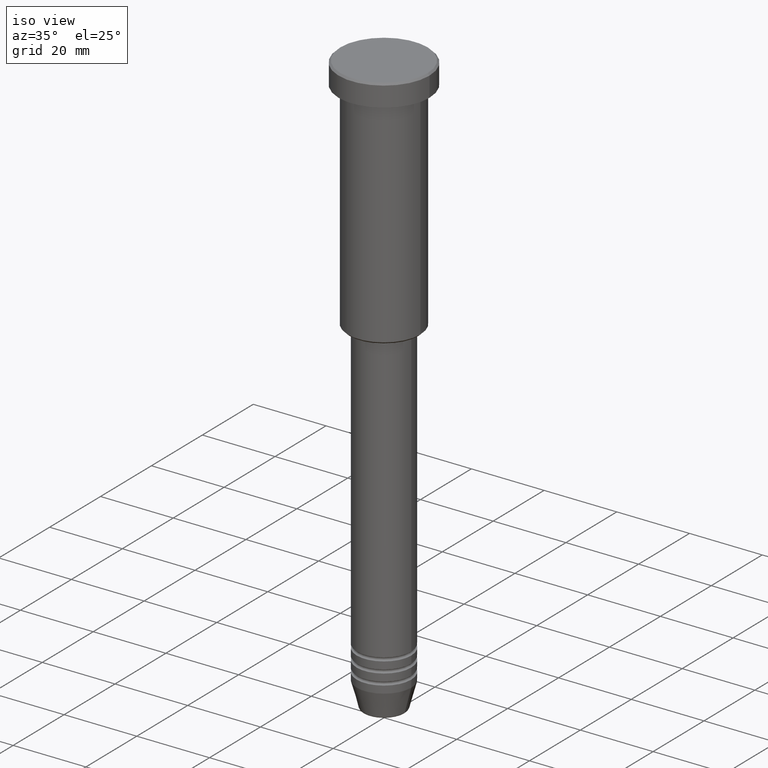
[diagram: clean part render]
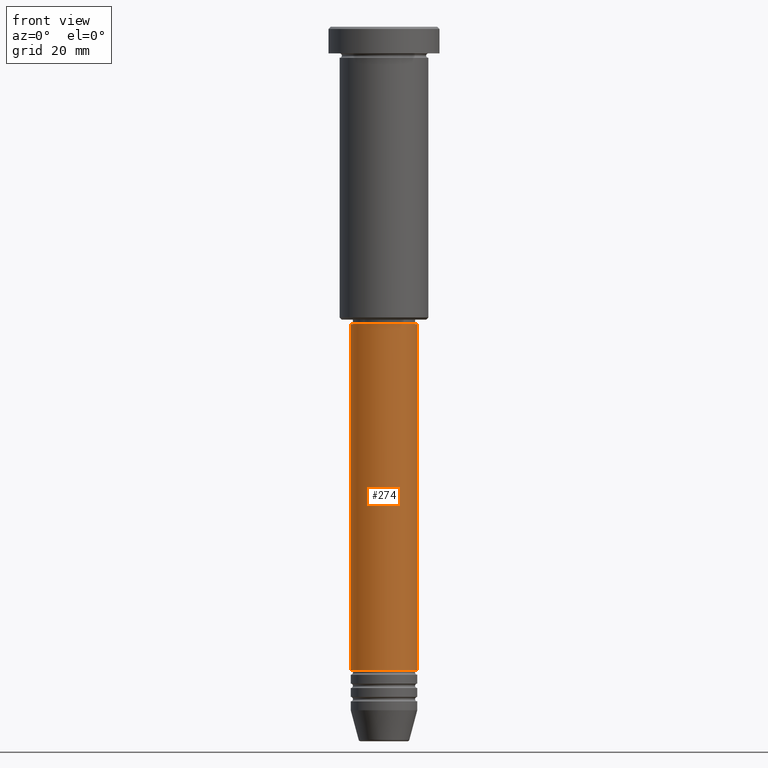
[diagram: tour spotlight — one face highlighted and labeled with its STEP entity id]
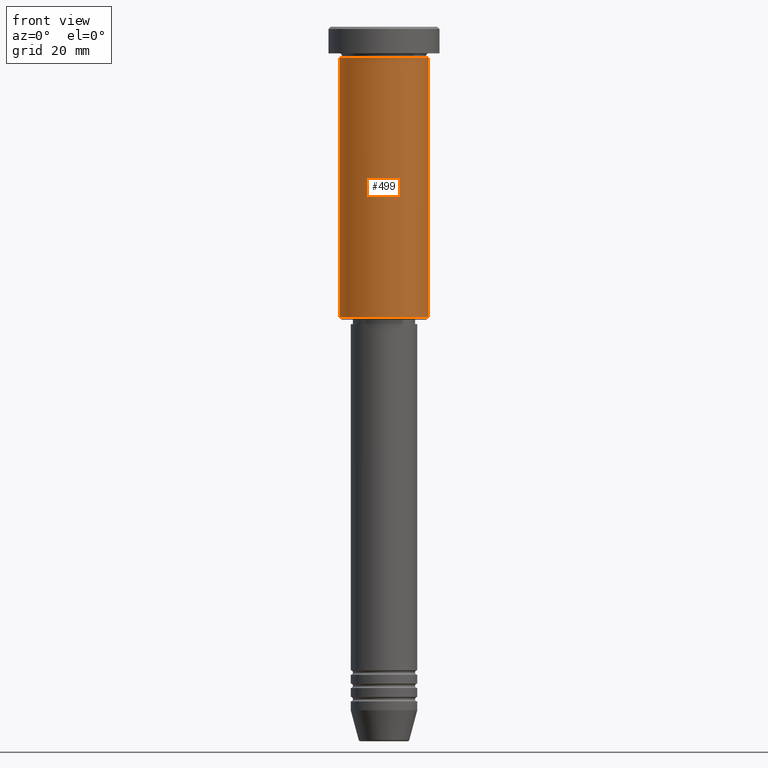
[diagram: tour spotlight — one face highlighted and labeled with its STEP entity id]
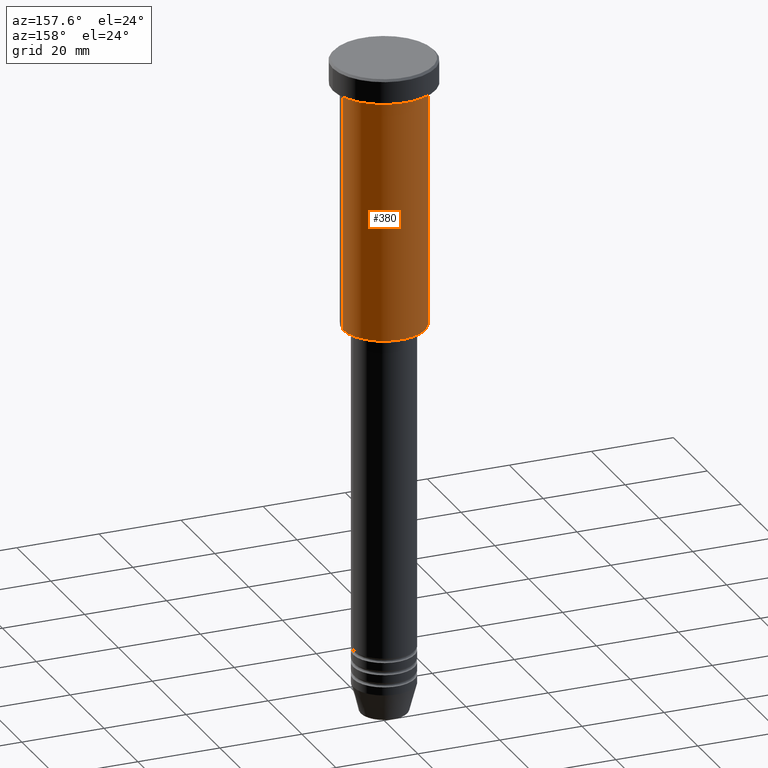
[diagram: tour spotlight — one face highlighted and labeled with its STEP entity id]
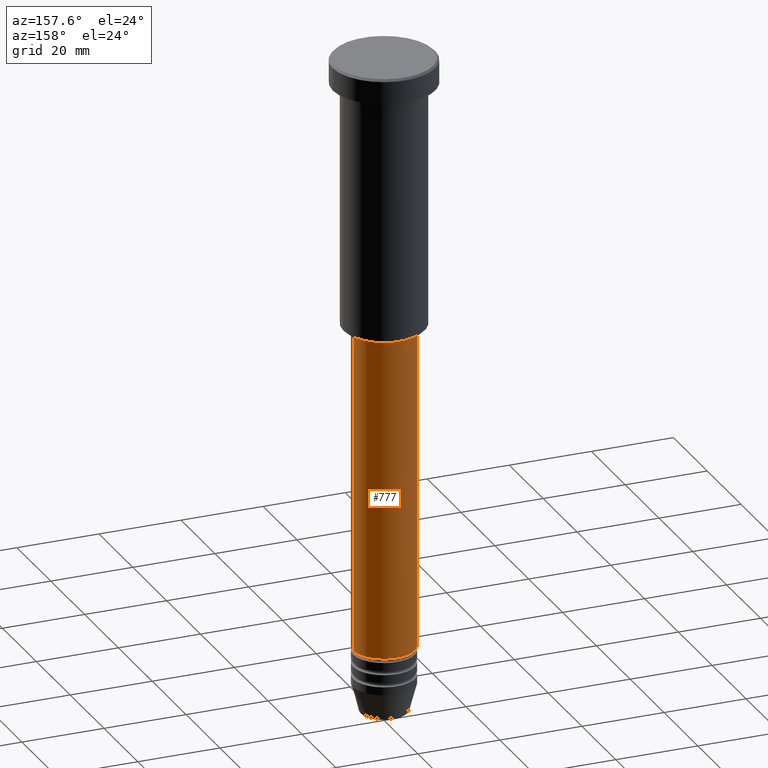
[diagram: tour spotlight — one face highlighted and labeled with its STEP entity id]
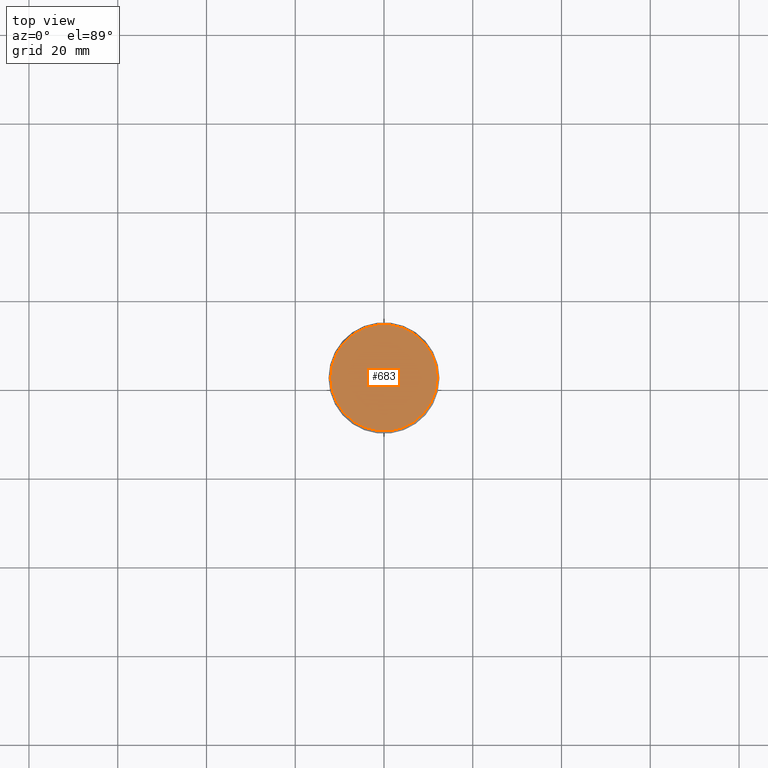
[diagram: tour spotlight — one face highlighted and labeled with its STEP entity id]
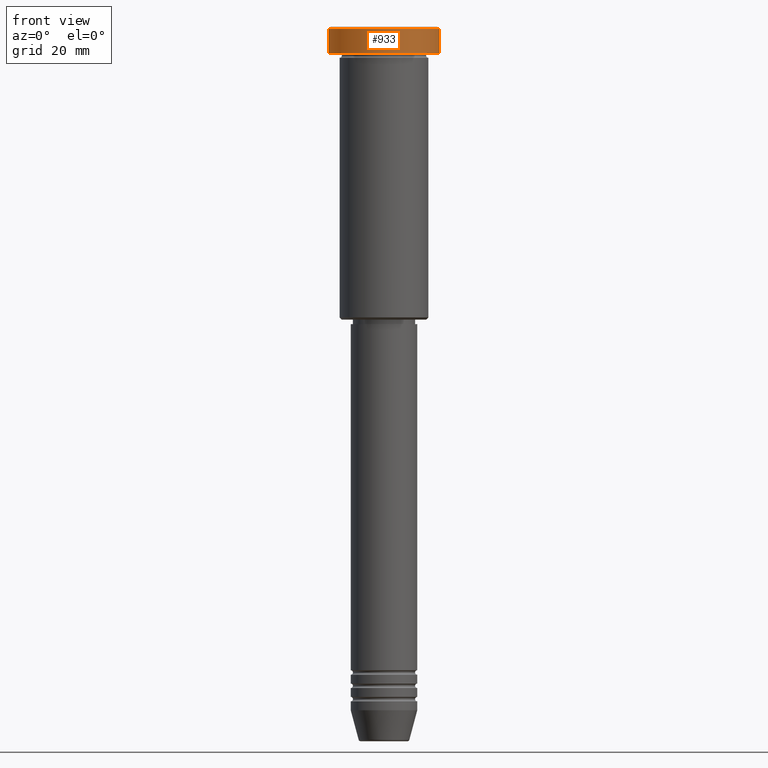
[diagram: tour spotlight — one face highlighted and labeled with its STEP entity id]
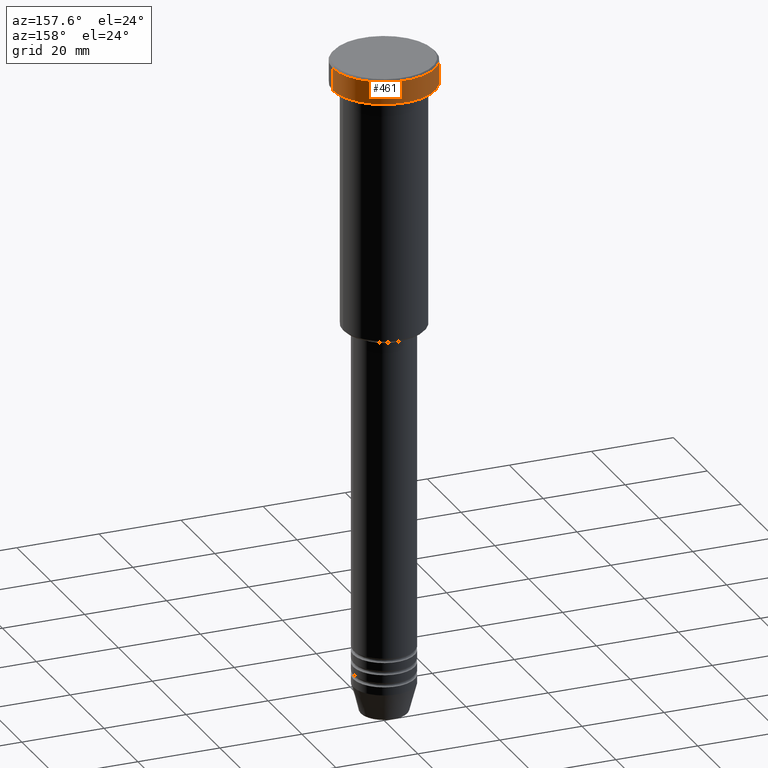
[diagram: tour spotlight — one face highlighted and labeled with its STEP entity id]
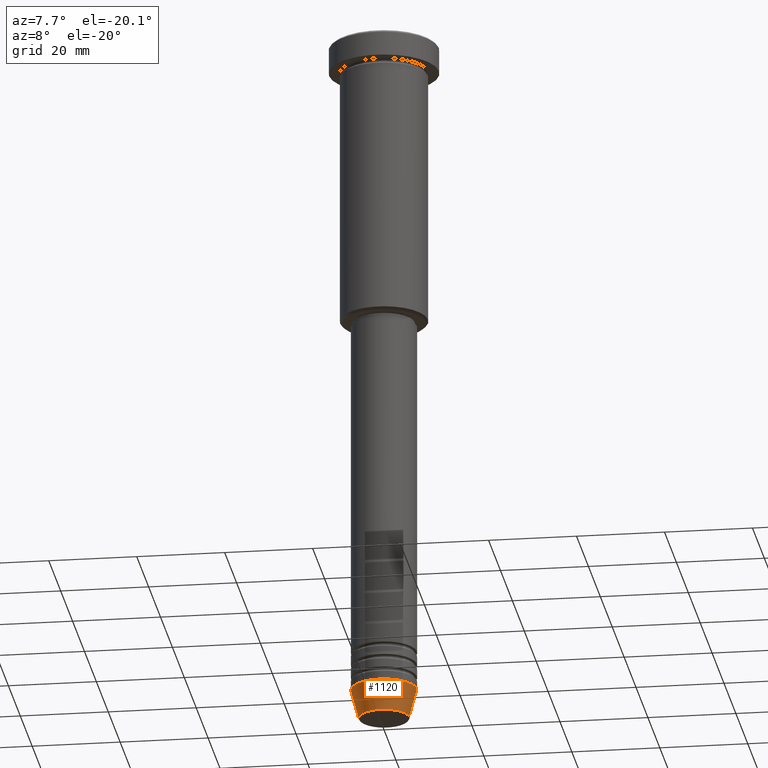
[diagram: tour spotlight — one face highlighted and labeled with its STEP entity id]
A machine part: a face-by-face anatomy tour. The part has 43 B-rep faces; the first image is the clean iso view, then the 8 largest visible faces are spotlighted one at a time (largest first), each with its STEP entity span.

Face 1 — front view, entity #274. In plain terms, the highlighted cylindrical surface (edge-blend (fillet) strip) has radius 7.5 mm, axis along (-0, -0, 1).
Definition (entity closure, byte-faithful):
#38 = ORIENTED_EDGE ( 'NONE', *, *, #671, .T. ) ;
#43 = DIRECTION ( 'NONE',  ( -0.000000000000000000, -0.000000000000000000, 1.000000000000000000 ) ) ;
#52 = ORIENTED_EDGE ( 'NONE', *, *, #1105, .T. ) ;
#87 = DIRECTION ( 'NONE',  ( -0.000000000000000000, -0.000000000000000000, 1.000000000000000000 ) ) ;
#132 = CARTESIAN_POINT ( 'NONE',  ( 0.000000000000000000, 0.000000000000000000, -144.9999999999999716 ) ) ;
#140 = DIRECTION ( 'NONE',  ( 1.000000000000000000, 0.000000000000000000, 0.000000000000000000 ) ) ;
#157 = VERTEX_POINT ( 'NONE', #645 ) ;
#171 = CYLINDRICAL_SURFACE ( 'NONE', #571, 7.500000000000000000 ) ;
#209 = EDGE_CURVE ( 'NONE', #157, #508, #919, .T. ) ;
#241 = DIRECTION ( 'NONE',  ( -0.000000000000000000, -0.000000000000000000, 1.000000000000000000 ) ) ;
#255 = DIRECTION ( 'NONE',  ( -0.000000000000000000, -0.000000000000000000, 1.000000000000000000 ) ) ;
#263 = CARTESIAN_POINT ( 'NONE',  ( 7.500000000000000000, 0.000000000000000000, -144.9999999999999716 ) ) ;
#274 = ADVANCED_FACE ( 'NONE', ( #437 ), #171, .T. ) ;
#403 = VECTOR ( 'NONE', #43, 1000.000000000000000 ) ;
#411 = VERTEX_POINT ( 'NONE', #263 ) ;
#437 = FACE_OUTER_BOUND ( 'NONE', #943, .T. ) ;
#496 = AXIS2_PLACEMENT_3D ( 'NONE', #599, #241, #140 ) ;
#508 = VERTEX_POINT ( 'NONE', #570 ) ;
#532 = CARTESIAN_POINT ( 'NONE',  ( -7.500000000000000000, 9.184850993605147944E-16, 0.000000000000000000 ) ) ;
#570 = CARTESIAN_POINT ( 'NONE',  ( -7.500000000000000000, 9.184850993605147944E-16, -67.00000000000000000 ) ) ;
#571 = AXIS2_PLACEMENT_3D ( 'NONE', #900, #87, #808 ) ;
#599 = CARTESIAN_POINT ( 'NONE',  ( 0.000000000000000000, 0.000000000000000000, -67.00000000000000000 ) ) ;
#645 = CARTESIAN_POINT ( 'NONE',  ( -7.500000000000000000, 9.184850993605147944E-16, -144.9999999999999716 ) ) ;
#671 = EDGE_CURVE ( 'NONE', #411, #1156, #1063, .T. ) ;
#672 = CARTESIAN_POINT ( 'NONE',  ( 7.500000000000000000, 0.000000000000000000, -67.00000000000000000 ) ) ;
#675 = ORIENTED_EDGE ( 'NONE', *, *, #209, .F. ) ;
#678 = CARTESIAN_POINT ( 'NONE',  ( 7.500000000000000000, 0.000000000000000000, 0.000000000000000000 ) ) ;
#808 = DIRECTION ( 'NONE',  ( 1.000000000000000000, 0.000000000000000000, 0.000000000000000000 ) ) ;
#843 = CIRCLE ( 'NONE', #496, 7.500000000000000000 ) ;
#859 = CIRCLE ( 'NONE', #1170, 7.500000000000000000 ) ;
#900 = CARTESIAN_POINT ( 'NONE',  ( 0.000000000000000000, 0.000000000000000000, 0.000000000000000000 ) ) ;
#919 = LINE ( 'NONE', #532, #1069 ) ;
#943 = EDGE_LOOP ( 'NONE', ( #675, #52, #38, #1056 ) ) ;
#944 = DIRECTION ( 'NONE',  ( -0.000000000000000000, -0.000000000000000000, 1.000000000000000000 ) ) ;
#958 = DIRECTION ( 'NONE',  ( 1.000000000000000000, 0.000000000000000000, 0.000000000000000000 ) ) ;
#1056 = ORIENTED_EDGE ( 'NONE', *, *, #1066, .F. ) ;
#1063 = LINE ( 'NONE', #678, #403 ) ;
#1066 = EDGE_CURVE ( 'NONE', #508, #1156, #843, .T. ) ;
#1069 = VECTOR ( 'NONE', #255, 1000.000000000000000 ) ;
#1105 = EDGE_CURVE ( 'NONE', #157, #411, #859, .T. ) ;
#1156 = VERTEX_POINT ( 'NONE', #672 ) ;
#1170 = AXIS2_PLACEMENT_3D ( 'NONE', #132, #944, #958 ) ;

Face 2 — front view, entity #499. In plain terms, the highlighted cylindrical surface (partial cylindrical patch) has radius 10 mm, axis along (-0, -0, 1).
Definition (entity closure, byte-faithful):
#59 = EDGE_CURVE ( 'NONE', #939, #221, #518, .T. ) ;
#122 = FACE_OUTER_BOUND ( 'NONE', #1157, .T. ) ;
#135 = LINE ( 'NONE', #862, #1018 ) ;
#143 = ORIENTED_EDGE ( 'NONE', *, *, #733, .T. ) ;
#153 = AXIS2_PLACEMENT_3D ( 'NONE', #285, #835, #661 ) ;
#163 = VERTEX_POINT ( 'NONE', #363 ) ;
#221 = VERTEX_POINT ( 'NONE', #1009 ) ;
#257 = DIRECTION ( 'NONE',  ( 1.000000000000000000, 0.000000000000000000, 0.000000000000000000 ) ) ;
#279 = DIRECTION ( 'NONE',  ( -0.000000000000000000, -0.000000000000000000, 1.000000000000000000 ) ) ;
#285 = CARTESIAN_POINT ( 'NONE',  ( 0.000000000000000000, 0.000000000000000000, 0.000000000000000000 ) ) ;
#289 = CARTESIAN_POINT ( 'NONE',  ( 10.00000000000000000, 0.000000000000000000, -65.50000000000000000 ) ) ;
#363 = CARTESIAN_POINT ( 'NONE',  ( 10.00000000000000000, 0.000000000000000000, -6.999999999999996447 ) ) ;
#410 = DIRECTION ( 'NONE',  ( -0.000000000000000000, -0.000000000000000000, 1.000000000000000000 ) ) ;
#426 = DIRECTION ( 'NONE',  ( -1.000000000000000000, 0.000000000000000000, 0.000000000000000000 ) ) ;
#475 = VECTOR ( 'NONE', #716, 1000.000000000000000 ) ;
#498 = VERTEX_POINT ( 'NONE', #289 ) ;
#499 = ADVANCED_FACE ( 'NONE', ( #122 ), #651, .T. ) ;
#513 = CIRCLE ( 'NONE', #1148, 10.00000000000000000 ) ;
#518 = LINE ( 'NONE', #523, #475 ) ;
#523 = CARTESIAN_POINT ( 'NONE',  ( -10.00000000000000000, 1.224646799147353256E-15, 0.000000000000000000 ) ) ;
#583 = CARTESIAN_POINT ( 'NONE',  ( 0.000000000000000000, 0.000000000000000000, -65.50000000000000000 ) ) ;
#651 = CYLINDRICAL_SURFACE ( 'NONE', #153, 10.00000000000000000 ) ;
#661 = DIRECTION ( 'NONE',  ( 1.000000000000000000, 0.000000000000000000, 0.000000000000000000 ) ) ;
#698 = ORIENTED_EDGE ( 'NONE', *, *, #833, .F. ) ;
#704 = EDGE_CURVE ( 'NONE', #939, #498, #1129, .T. ) ;
#716 = DIRECTION ( 'NONE',  ( -0.000000000000000000, -0.000000000000000000, 1.000000000000000000 ) ) ;
#733 = EDGE_CURVE ( 'NONE', #498, #163, #135, .T. ) ;
#764 = AXIS2_PLACEMENT_3D ( 'NONE', #583, #786, #426 ) ;
#786 = DIRECTION ( 'NONE',  ( -0.000000000000000000, -0.000000000000000000, 1.000000000000000000 ) ) ;
#833 = EDGE_CURVE ( 'NONE', #221, #163, #513, .T. ) ;
#835 = DIRECTION ( 'NONE',  ( -0.000000000000000000, -0.000000000000000000, 1.000000000000000000 ) ) ;
#862 = CARTESIAN_POINT ( 'NONE',  ( 10.00000000000000000, 0.000000000000000000, 0.000000000000000000 ) ) ;
#932 = ORIENTED_EDGE ( 'NONE', *, *, #704, .T. ) ;
#939 = VERTEX_POINT ( 'NONE', #1122 ) ;
#1009 = CARTESIAN_POINT ( 'NONE',  ( -10.00000000000000000, 1.224646799147353256E-15, -6.999999999999996447 ) ) ;
#1018 = VECTOR ( 'NONE', #410, 1000.000000000000000 ) ;
#1076 = CARTESIAN_POINT ( 'NONE',  ( 0.000000000000000000, 0.000000000000000000, -6.999999999999996447 ) ) ;
#1108 = ORIENTED_EDGE ( 'NONE', *, *, #59, .F. ) ;
#1122 = CARTESIAN_POINT ( 'NONE',  ( -10.00000000000000000, 1.224646799147353256E-15, -65.50000000000000000 ) ) ;
#1129 = CIRCLE ( 'NONE', #764, 10.00000000000000000 ) ;
#1148 = AXIS2_PLACEMENT_3D ( 'NONE', #1076, #279, #257 ) ;
#1157 = EDGE_LOOP ( 'NONE', ( #1108, #932, #143, #698 ) ) ;

Face 3 — auxiliary view, entity #380. In plain terms, the highlighted cylindrical surface (partial cylindrical patch) has radius 10 mm, axis along (-0, -0, 1).
Definition (entity closure, byte-faithful):
#25 = CIRCLE ( 'NONE', #1092, 10.00000000000000000 ) ;
#32 = ORIENTED_EDGE ( 'NONE', *, *, #302, .T. ) ;
#59 = EDGE_CURVE ( 'NONE', #939, #221, #518, .T. ) ;
#72 = FACE_OUTER_BOUND ( 'NONE', #193, .T. ) ;
#81 = AXIS2_PLACEMENT_3D ( 'NONE', #1077, #709, #613 ) ;
#135 = LINE ( 'NONE', #862, #1018 ) ;
#163 = VERTEX_POINT ( 'NONE', #363 ) ;
#193 = EDGE_LOOP ( 'NONE', ( #32, #1028, #1142, #848 ) ) ;
#221 = VERTEX_POINT ( 'NONE', #1009 ) ;
#289 = CARTESIAN_POINT ( 'NONE',  ( 10.00000000000000000, 0.000000000000000000, -65.50000000000000000 ) ) ;
#302 = EDGE_CURVE ( 'NONE', #498, #939, #952, .T. ) ;
#363 = CARTESIAN_POINT ( 'NONE',  ( 10.00000000000000000, 0.000000000000000000, -6.999999999999996447 ) ) ;
#380 = ADVANCED_FACE ( 'NONE', ( #72 ), #730, .T. ) ;
#410 = DIRECTION ( 'NONE',  ( -0.000000000000000000, -0.000000000000000000, 1.000000000000000000 ) ) ;
#435 = EDGE_CURVE ( 'NONE', #163, #221, #25, .T. ) ;
#440 = DIRECTION ( 'NONE',  ( 1.000000000000000000, 0.000000000000000000, 0.000000000000000000 ) ) ;
#453 = DIRECTION ( 'NONE',  ( 1.000000000000000000, 0.000000000000000000, 0.000000000000000000 ) ) ;
#475 = VECTOR ( 'NONE', #716, 1000.000000000000000 ) ;
#476 = AXIS2_PLACEMENT_3D ( 'NONE', #737, #633, #440 ) ;
#498 = VERTEX_POINT ( 'NONE', #289 ) ;
#518 = LINE ( 'NONE', #523, #475 ) ;
#523 = CARTESIAN_POINT ( 'NONE',  ( -10.00000000000000000, 1.224646799147353256E-15, 0.000000000000000000 ) ) ;
#544 = CARTESIAN_POINT ( 'NONE',  ( 0.000000000000000000, 0.000000000000000000, -6.999999999999996447 ) ) ;
#613 = DIRECTION ( 'NONE',  ( -1.000000000000000000, 0.000000000000000000, 0.000000000000000000 ) ) ;
#633 = DIRECTION ( 'NONE',  ( -0.000000000000000000, -0.000000000000000000, 1.000000000000000000 ) ) ;
#709 = DIRECTION ( 'NONE',  ( -0.000000000000000000, -0.000000000000000000, 1.000000000000000000 ) ) ;
#716 = DIRECTION ( 'NONE',  ( -0.000000000000000000, -0.000000000000000000, 1.000000000000000000 ) ) ;
#730 = CYLINDRICAL_SURFACE ( 'NONE', #476, 10.00000000000000000 ) ;
#733 = EDGE_CURVE ( 'NONE', #498, #163, #135, .T. ) ;
#737 = CARTESIAN_POINT ( 'NONE',  ( 0.000000000000000000, 0.000000000000000000, 0.000000000000000000 ) ) ;
#848 = ORIENTED_EDGE ( 'NONE', *, *, #733, .F. ) ;
#862 = CARTESIAN_POINT ( 'NONE',  ( 10.00000000000000000, 0.000000000000000000, 0.000000000000000000 ) ) ;
#911 = DIRECTION ( 'NONE',  ( -0.000000000000000000, -0.000000000000000000, 1.000000000000000000 ) ) ;
#939 = VERTEX_POINT ( 'NONE', #1122 ) ;
#952 = CIRCLE ( 'NONE', #81, 10.00000000000000000 ) ;
#1009 = CARTESIAN_POINT ( 'NONE',  ( -10.00000000000000000, 1.224646799147353256E-15, -6.999999999999996447 ) ) ;
#1018 = VECTOR ( 'NONE', #410, 1000.000000000000000 ) ;
#1028 = ORIENTED_EDGE ( 'NONE', *, *, #59, .T. ) ;
#1077 = CARTESIAN_POINT ( 'NONE',  ( 0.000000000000000000, 0.000000000000000000, -65.50000000000000000 ) ) ;
#1092 = AXIS2_PLACEMENT_3D ( 'NONE', #544, #911, #453 ) ;
#1122 = CARTESIAN_POINT ( 'NONE',  ( -10.00000000000000000, 1.224646799147353256E-15, -65.50000000000000000 ) ) ;
#1142 = ORIENTED_EDGE ( 'NONE', *, *, #435, .F. ) ;

Face 4 — auxiliary view, entity #777. In plain terms, the highlighted cylindrical surface (edge-blend (fillet) strip) has radius 7.5 mm, axis along (-0, -0, 1).
Definition (entity closure, byte-faithful):
#27 = EDGE_CURVE ( 'NONE', #1156, #508, #1031, .T. ) ;
#43 = DIRECTION ( 'NONE',  ( -0.000000000000000000, -0.000000000000000000, 1.000000000000000000 ) ) ;
#46 = ORIENTED_EDGE ( 'NONE', *, *, #340, .T. ) ;
#90 = DIRECTION ( 'NONE',  ( -0.000000000000000000, -0.000000000000000000, 1.000000000000000000 ) ) ;
#157 = VERTEX_POINT ( 'NONE', #645 ) ;
#209 = EDGE_CURVE ( 'NONE', #157, #508, #919, .T. ) ;
#255 = DIRECTION ( 'NONE',  ( -0.000000000000000000, -0.000000000000000000, 1.000000000000000000 ) ) ;
#263 = CARTESIAN_POINT ( 'NONE',  ( 7.500000000000000000, 0.000000000000000000, -144.9999999999999716 ) ) ;
#340 = EDGE_CURVE ( 'NONE', #411, #157, #1167, .T. ) ;
#357 = CYLINDRICAL_SURFACE ( 'NONE', #494, 7.500000000000000000 ) ;
#403 = VECTOR ( 'NONE', #43, 1000.000000000000000 ) ;
#411 = VERTEX_POINT ( 'NONE', #263 ) ;
#439 = CARTESIAN_POINT ( 'NONE',  ( 0.000000000000000000, 0.000000000000000000, 0.000000000000000000 ) ) ;
#447 = DIRECTION ( 'NONE',  ( 1.000000000000000000, 0.000000000000000000, 0.000000000000000000 ) ) ;
#448 = DIRECTION ( 'NONE',  ( -0.000000000000000000, -0.000000000000000000, 1.000000000000000000 ) ) ;
#455 = ORIENTED_EDGE ( 'NONE', *, *, #209, .T. ) ;
#460 = AXIS2_PLACEMENT_3D ( 'NONE', #805, #448, #887 ) ;
#494 = AXIS2_PLACEMENT_3D ( 'NONE', #439, #795, #447 ) ;
#508 = VERTEX_POINT ( 'NONE', #570 ) ;
#532 = CARTESIAN_POINT ( 'NONE',  ( -7.500000000000000000, 9.184850993605147944E-16, 0.000000000000000000 ) ) ;
#549 = FACE_OUTER_BOUND ( 'NONE', #1137, .T. ) ;
#570 = CARTESIAN_POINT ( 'NONE',  ( -7.500000000000000000, 9.184850993605147944E-16, -67.00000000000000000 ) ) ;
#645 = CARTESIAN_POINT ( 'NONE',  ( -7.500000000000000000, 9.184850993605147944E-16, -144.9999999999999716 ) ) ;
#671 = EDGE_CURVE ( 'NONE', #411, #1156, #1063, .T. ) ;
#672 = CARTESIAN_POINT ( 'NONE',  ( 7.500000000000000000, 0.000000000000000000, -67.00000000000000000 ) ) ;
#678 = CARTESIAN_POINT ( 'NONE',  ( 7.500000000000000000, 0.000000000000000000, 0.000000000000000000 ) ) ;
#777 = ADVANCED_FACE ( 'NONE', ( #549 ), #357, .T. ) ;
#787 = ORIENTED_EDGE ( 'NONE', *, *, #27, .F. ) ;
#791 = CARTESIAN_POINT ( 'NONE',  ( 0.000000000000000000, 0.000000000000000000, -67.00000000000000000 ) ) ;
#795 = DIRECTION ( 'NONE',  ( -0.000000000000000000, -0.000000000000000000, 1.000000000000000000 ) ) ;
#805 = CARTESIAN_POINT ( 'NONE',  ( 0.000000000000000000, 0.000000000000000000, -144.9999999999999716 ) ) ;
#883 = DIRECTION ( 'NONE',  ( 1.000000000000000000, 0.000000000000000000, 0.000000000000000000 ) ) ;
#887 = DIRECTION ( 'NONE',  ( 1.000000000000000000, 0.000000000000000000, 0.000000000000000000 ) ) ;
#919 = LINE ( 'NONE', #532, #1069 ) ;
#970 = AXIS2_PLACEMENT_3D ( 'NONE', #791, #90, #883 ) ;
#1031 = CIRCLE ( 'NONE', #970, 7.500000000000000000 ) ;
#1063 = LINE ( 'NONE', #678, #403 ) ;
#1069 = VECTOR ( 'NONE', #255, 1000.000000000000000 ) ;
#1133 = ORIENTED_EDGE ( 'NONE', *, *, #671, .F. ) ;
#1137 = EDGE_LOOP ( 'NONE', ( #46, #455, #787, #1133 ) ) ;
#1156 = VERTEX_POINT ( 'NONE', #672 ) ;
#1167 = CIRCLE ( 'NONE', #460, 7.500000000000000000 ) ;

Face 5 — top view, entity #683. In plain terms, the highlighted planar face has unit normal (0, -0, 1).
Definition (entity closure, byte-faithful):
#105 = AXIS2_PLACEMENT_3D ( 'NONE', #421, #946, #1136 ) ;
#147 = FACE_OUTER_BOUND ( 'NONE', #1003, .T. ) ;
#148 = ORIENTED_EDGE ( 'NONE', *, *, #214, .T. ) ;
#173 = AXIS2_PLACEMENT_3D ( 'NONE', #829, #1094, #623 ) ;
#214 = EDGE_CURVE ( 'NONE', #769, #621, #1109, .T. ) ;
#276 = ORIENTED_EDGE ( 'NONE', *, *, #307, .T. ) ;
#307 = EDGE_CURVE ( 'NONE', #621, #769, #492, .T. ) ;
#337 = CARTESIAN_POINT ( 'NONE',  ( -12.00000000000002487, 0.000000000000000000, 0.000000000000000000 ) ) ;
#421 = CARTESIAN_POINT ( 'NONE',  ( 0.000000000000000000, 0.000000000000000000, 0.000000000000000000 ) ) ;
#488 = CARTESIAN_POINT ( 'NONE',  ( 12.00000000000002487, 1.500192328955509115E-15, 0.000000000000000000 ) ) ;
#492 = CIRCLE ( 'NONE', #1016, 12.00000000000002487 ) ;
#550 = DIRECTION ( 'NONE',  ( -0.000000000000000000, -0.000000000000000000, 1.000000000000000000 ) ) ;
#620 = DIRECTION ( 'NONE',  ( 1.000000000000000000, 0.000000000000000000, 0.000000000000000000 ) ) ;
#621 = VERTEX_POINT ( 'NONE', #488 ) ;
#623 = DIRECTION ( 'NONE',  ( 1.000000000000000000, 0.000000000000000000, 0.000000000000000000 ) ) ;
#683 = ADVANCED_FACE ( 'NONE', ( #147 ), #768, .T. ) ;
#768 = PLANE ( 'NONE',  #105 ) ;
#769 = VERTEX_POINT ( 'NONE', #337 ) ;
#811 = CARTESIAN_POINT ( 'NONE',  ( 0.000000000000000000, 0.000000000000000000, 0.000000000000000000 ) ) ;
#829 = CARTESIAN_POINT ( 'NONE',  ( 0.000000000000000000, 0.000000000000000000, 0.000000000000000000 ) ) ;
#946 = DIRECTION ( 'NONE',  ( 0.000000000000000000, -0.000000000000000000, 1.000000000000000000 ) ) ;
#1003 = EDGE_LOOP ( 'NONE', ( #148, #276 ) ) ;
#1016 = AXIS2_PLACEMENT_3D ( 'NONE', #811, #550, #620 ) ;
#1094 = DIRECTION ( 'NONE',  ( -0.000000000000000000, -0.000000000000000000, 1.000000000000000000 ) ) ;
#1109 = CIRCLE ( 'NONE', #173, 12.00000000000002487 ) ;
#1136 = DIRECTION ( 'NONE',  ( 1.000000000000000000, 0.000000000000000000, 0.000000000000000000 ) ) ;

Face 6 — front view, entity #933. In plain terms, the highlighted cylindrical surface (partial cylindrical patch) has radius 12.5 mm, axis along (-0, -0, 1).
Definition (entity closure, byte-faithful):
#4 = DIRECTION ( 'NONE',  ( 0.000000000000000000, 0.000000000000000000, -1.000000000000000000 ) ) ;
#5 = EDGE_CURVE ( 'NONE', #812, #890, #1182, .T. ) ;
#80 = CARTESIAN_POINT ( 'NONE',  ( 12.50000000000000000, 0.000000000000000000, 0.000000000000000000 ) ) ;
#128 = DIRECTION ( 'NONE',  ( -0.000000000000000000, -0.000000000000000000, 1.000000000000000000 ) ) ;
#151 = CIRCLE ( 'NONE', #438, 12.50000000000000000 ) ;
#182 = EDGE_CURVE ( 'NONE', #742, #812, #151, .T. ) ;
#238 = CARTESIAN_POINT ( 'NONE',  ( -12.50000000000000000, 1.530808498934191521E-15, 0.000000000000000000 ) ) ;
#303 = ORIENTED_EDGE ( 'NONE', *, *, #721, .F. ) ;
#311 = LINE ( 'NONE', #238, #858 ) ;
#333 = VERTEX_POINT ( 'NONE', #1089 ) ;
#349 = DIRECTION ( 'NONE',  ( 1.000000000000000000, 0.000000000000000000, 0.000000000000000000 ) ) ;
#350 = EDGE_CURVE ( 'NONE', #890, #333, #630, .T. ) ;
#384 = AXIS2_PLACEMENT_3D ( 'NONE', #720, #4, #1175 ) ;
#416 = ORIENTED_EDGE ( 'NONE', *, *, #5, .T. ) ;
#438 = AXIS2_PLACEMENT_3D ( 'NONE', #712, #988, #349 ) ;
#516 = AXIS2_PLACEMENT_3D ( 'NONE', #930, #1118, #569 ) ;
#569 = DIRECTION ( 'NONE',  ( 1.000000000000000000, 0.000000000000000000, 0.000000000000000000 ) ) ;
#630 = CIRCLE ( 'NONE', #384, 12.50000000000000000 ) ;
#631 = CARTESIAN_POINT ( 'NONE',  ( 12.50000000000000000, 0.000000000000000000, -0.4999999999999917843 ) ) ;
#702 = ORIENTED_EDGE ( 'NONE', *, *, #350, .T. ) ;
#712 = CARTESIAN_POINT ( 'NONE',  ( 0.000000000000000000, 0.000000000000000000, -5.999999999999996447 ) ) ;
#720 = CARTESIAN_POINT ( 'NONE',  ( 0.000000000000000000, 0.000000000000000000, -0.4999999999999917843 ) ) ;
#721 = EDGE_CURVE ( 'NONE', #742, #333, #311, .T. ) ;
#742 = VERTEX_POINT ( 'NONE', #773 ) ;
#763 = EDGE_LOOP ( 'NONE', ( #303, #1054, #416, #702 ) ) ;
#773 = CARTESIAN_POINT ( 'NONE',  ( -12.50000000000000000, 1.530808498934191521E-15, -5.999999999999996447 ) ) ;
#800 = VECTOR ( 'NONE', #894, 1000.000000000000000 ) ;
#812 = VERTEX_POINT ( 'NONE', #886 ) ;
#834 = CYLINDRICAL_SURFACE ( 'NONE', #516, 12.50000000000000000 ) ;
#858 = VECTOR ( 'NONE', #128, 1000.000000000000000 ) ;
#886 = CARTESIAN_POINT ( 'NONE',  ( 12.50000000000000000, 0.000000000000000000, -5.999999999999996447 ) ) ;
#890 = VERTEX_POINT ( 'NONE', #631 ) ;
#894 = DIRECTION ( 'NONE',  ( -0.000000000000000000, -0.000000000000000000, 1.000000000000000000 ) ) ;
#930 = CARTESIAN_POINT ( 'NONE',  ( 0.000000000000000000, 0.000000000000000000, 0.000000000000000000 ) ) ;
#933 = ADVANCED_FACE ( 'NONE', ( #1017 ), #834, .T. ) ;
#988 = DIRECTION ( 'NONE',  ( -0.000000000000000000, -0.000000000000000000, 1.000000000000000000 ) ) ;
#1017 = FACE_OUTER_BOUND ( 'NONE', #763, .T. ) ;
#1054 = ORIENTED_EDGE ( 'NONE', *, *, #182, .T. ) ;
#1089 = CARTESIAN_POINT ( 'NONE',  ( -12.50000000000000000, 1.530808498934191521E-15, -0.4999999999999917843 ) ) ;
#1118 = DIRECTION ( 'NONE',  ( -0.000000000000000000, -0.000000000000000000, 1.000000000000000000 ) ) ;
#1175 = DIRECTION ( 'NONE',  ( 1.000000000000000000, 0.000000000000000000, 0.000000000000000000 ) ) ;
#1182 = LINE ( 'NONE', #80, #800 ) ;

Face 7 — auxiliary view, entity #461. In plain terms, the highlighted cylindrical surface (partial cylindrical patch) has radius 12.5 mm, axis along (-0, -0, 1).
Definition (entity closure, byte-faithful):
#5 = EDGE_CURVE ( 'NONE', #812, #890, #1182, .T. ) ;
#9 = CIRCLE ( 'NONE', #1032, 12.50000000000000000 ) ;
#19 = DIRECTION ( 'NONE',  ( 1.000000000000000000, 0.000000000000000000, 0.000000000000000000 ) ) ;
#23 = EDGE_LOOP ( 'NONE', ( #819, #116, #244, #530 ) ) ;
#80 = CARTESIAN_POINT ( 'NONE',  ( 12.50000000000000000, 0.000000000000000000, 0.000000000000000000 ) ) ;
#116 = ORIENTED_EDGE ( 'NONE', *, *, #721, .T. ) ;
#128 = DIRECTION ( 'NONE',  ( -0.000000000000000000, -0.000000000000000000, 1.000000000000000000 ) ) ;
#204 = FACE_OUTER_BOUND ( 'NONE', #23, .T. ) ;
#238 = CARTESIAN_POINT ( 'NONE',  ( -12.50000000000000000, 1.530808498934191521E-15, 0.000000000000000000 ) ) ;
#244 = ORIENTED_EDGE ( 'NONE', *, *, #626, .T. ) ;
#250 = CIRCLE ( 'NONE', #782, 12.50000000000000000 ) ;
#292 = AXIS2_PLACEMENT_3D ( 'NONE', #923, #1114, #19 ) ;
#311 = LINE ( 'NONE', #238, #858 ) ;
#333 = VERTEX_POINT ( 'NONE', #1089 ) ;
#391 = CARTESIAN_POINT ( 'NONE',  ( 0.000000000000000000, 0.000000000000000000, -5.999999999999996447 ) ) ;
#393 = CYLINDRICAL_SURFACE ( 'NONE', #292, 12.50000000000000000 ) ;
#461 = ADVANCED_FACE ( 'NONE', ( #204 ), #393, .T. ) ;
#472 = EDGE_CURVE ( 'NONE', #812, #742, #9, .T. ) ;
#530 = ORIENTED_EDGE ( 'NONE', *, *, #5, .F. ) ;
#601 = CARTESIAN_POINT ( 'NONE',  ( 0.000000000000000000, 0.000000000000000000, -0.4999999999999917843 ) ) ;
#626 = EDGE_CURVE ( 'NONE', #333, #890, #250, .T. ) ;
#631 = CARTESIAN_POINT ( 'NONE',  ( 12.50000000000000000, 0.000000000000000000, -0.4999999999999917843 ) ) ;
#721 = EDGE_CURVE ( 'NONE', #742, #333, #311, .T. ) ;
#742 = VERTEX_POINT ( 'NONE', #773 ) ;
#747 = DIRECTION ( 'NONE',  ( 1.000000000000000000, 0.000000000000000000, 0.000000000000000000 ) ) ;
#773 = CARTESIAN_POINT ( 'NONE',  ( -12.50000000000000000, 1.530808498934191521E-15, -5.999999999999996447 ) ) ;
#782 = AXIS2_PLACEMENT_3D ( 'NONE', #601, #872, #1128 ) ;
#800 = VECTOR ( 'NONE', #894, 1000.000000000000000 ) ;
#812 = VERTEX_POINT ( 'NONE', #886 ) ;
#819 = ORIENTED_EDGE ( 'NONE', *, *, #472, .T. ) ;
#858 = VECTOR ( 'NONE', #128, 1000.000000000000000 ) ;
#872 = DIRECTION ( 'NONE',  ( 0.000000000000000000, 0.000000000000000000, -1.000000000000000000 ) ) ;
#886 = CARTESIAN_POINT ( 'NONE',  ( 12.50000000000000000, 0.000000000000000000, -5.999999999999996447 ) ) ;
#890 = VERTEX_POINT ( 'NONE', #631 ) ;
#894 = DIRECTION ( 'NONE',  ( -0.000000000000000000, -0.000000000000000000, 1.000000000000000000 ) ) ;
#923 = CARTESIAN_POINT ( 'NONE',  ( 0.000000000000000000, 0.000000000000000000, 0.000000000000000000 ) ) ;
#1032 = AXIS2_PLACEMENT_3D ( 'NONE', #391, #1119, #747 ) ;
#1089 = CARTESIAN_POINT ( 'NONE',  ( -12.50000000000000000, 1.530808498934191521E-15, -0.4999999999999917843 ) ) ;
#1114 = DIRECTION ( 'NONE',  ( -0.000000000000000000, -0.000000000000000000, 1.000000000000000000 ) ) ;
#1119 = DIRECTION ( 'NONE',  ( -0.000000000000000000, -0.000000000000000000, 1.000000000000000000 ) ) ;
#1128 = DIRECTION ( 'NONE',  ( 1.000000000000000000, 0.000000000000000000, 0.000000000000000000 ) ) ;
#1182 = LINE ( 'NONE', #80, #800 ) ;

Face 8 — auxiliary view, entity #1120. In plain terms, the highlighted conical surface has half-angle 15 deg.
Definition (entity closure, byte-faithful):
#3 = CARTESIAN_POINT ( 'NONE',  ( 5.723655072137197486, 0.000000000000000000, -160.6294095225512137 ) ) ;
#14 = DIRECTION ( 'NONE',  ( -0.000000000000000000, -0.000000000000000000, 1.000000000000000000 ) ) ;
#16 = ORIENTED_EDGE ( 'NONE', *, *, #47, .T. ) ;
#41 = VECTOR ( 'NONE', #178, 1000.000000000000000 ) ;
#47 = EDGE_CURVE ( 'NONE', #774, #668, #1090, .T. ) ;
#112 = VERTEX_POINT ( 'NONE', #243 ) ;
#133 = VECTOR ( 'NONE', #815, 1000.000000000000000 ) ;
#160 = EDGE_CURVE ( 'NONE', #212, #112, #909, .T. ) ;
#165 = CARTESIAN_POINT ( 'NONE',  ( -5.723655072137197486, 8.097153428560739859E-16, -160.6294095225512137 ) ) ;
#178 = DIRECTION ( 'NONE',  ( 0.2588190451025213501, 0.000000000000000000, 0.9659258262890680902 ) ) ;
#184 = CARTESIAN_POINT ( 'NONE',  ( -7.500000000000000000, 9.184850993605147944E-16, -154.0000000000000000 ) ) ;
#212 = VERTEX_POINT ( 'NONE', #165 ) ;
#243 = CARTESIAN_POINT ( 'NONE',  ( -7.500000000000000000, 9.184850993605147944E-16, -154.0000000000000000 ) ) ;
#249 = AXIS2_PLACEMENT_3D ( 'NONE', #1006, #14, #374 ) ;
#367 = CIRCLE ( 'NONE', #249, 5.723655072137197486 ) ;
#374 = DIRECTION ( 'NONE',  ( 1.000000000000000000, 0.000000000000000000, 0.000000000000000000 ) ) ;
#388 = AXIS2_PLACEMENT_3D ( 'NONE', #1125, #853, #1038 ) ;
#406 = ORIENTED_EDGE ( 'NONE', *, *, #160, .F. ) ;
#415 = CARTESIAN_POINT ( 'NONE',  ( 7.500000000000000000, 0.000000000000000000, -154.0000000000000000 ) ) ;
#428 = CARTESIAN_POINT ( 'NONE',  ( 7.500000000000000000, 0.000000000000000000, -154.0000000000000000 ) ) ;
#445 = EDGE_CURVE ( 'NONE', #212, #774, #367, .T. ) ;
#559 = AXIS2_PLACEMENT_3D ( 'NONE', #736, #934, #845 ) ;
#564 = ORIENTED_EDGE ( 'NONE', *, *, #940, .F. ) ;
#668 = VERTEX_POINT ( 'NONE', #415 ) ;
#736 = CARTESIAN_POINT ( 'NONE',  ( 0.000000000000000000, 0.000000000000000000, -154.0000000000000000 ) ) ;
#774 = VERTEX_POINT ( 'NONE', #3 ) ;
#776 = FACE_OUTER_BOUND ( 'NONE', #860, .T. ) ;
#815 = DIRECTION ( 'NONE',  ( -0.2588190451025213501, 3.169619151431772337E-17, 0.9659258262890680902 ) ) ;
#845 = DIRECTION ( 'NONE',  ( 1.000000000000000000, 0.000000000000000000, 0.000000000000000000 ) ) ;
#853 = DIRECTION ( 'NONE',  ( -0.000000000000000000, -0.000000000000000000, 1.000000000000000000 ) ) ;
#860 = EDGE_LOOP ( 'NONE', ( #406, #1117, #16, #564 ) ) ;
#909 = LINE ( 'NONE', #184, #133 ) ;
#934 = DIRECTION ( 'NONE',  ( -0.000000000000000000, -0.000000000000000000, 1.000000000000000000 ) ) ;
#938 = CIRCLE ( 'NONE', #559, 7.500000000000000000 ) ;
#940 = EDGE_CURVE ( 'NONE', #112, #668, #938, .T. ) ;
#1006 = CARTESIAN_POINT ( 'NONE',  ( 0.000000000000000000, 0.000000000000000000, -160.6294095225512137 ) ) ;
#1038 = DIRECTION ( 'NONE',  ( 1.000000000000000000, 0.000000000000000000, 0.000000000000000000 ) ) ;
#1073 = CONICAL_SURFACE ( 'NONE', #388, 7.500000000000000000, 0.2617993877991500740 ) ;
#1090 = LINE ( 'NONE', #428, #41 ) ;
#1117 = ORIENTED_EDGE ( 'NONE', *, *, #445, .T. ) ;
#1120 = ADVANCED_FACE ( 'NONE', ( #776 ), #1073, .T. ) ;
#1125 = CARTESIAN_POINT ( 'NONE',  ( 0.000000000000000000, 0.000000000000000000, -154.0000000000000000 ) ) ;